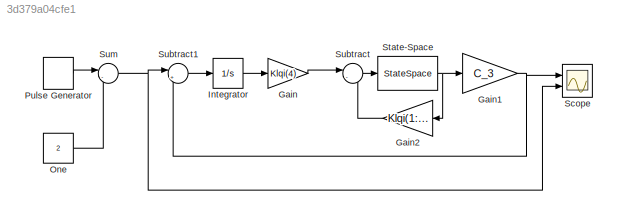
MODEL slx_3d379a04cfe1
KIND model
CONFIG AbsTol = auto
CONFIG EnableMultiTasking = off
CONFIG FixedStep = auto
CONFIG MaxStep = auto
CONFIG MinStep = auto
CONFIG RelTol = 1e-3
CONFIG SampleTimeConstraint = Unconstrained
CONFIG SolverName = VariableStepAuto
CONFIG StartTime = 0.0
CONFIG StopTime = 4
BLOCK [Gain] Gain
  Gain = Klqi(4)
BLOCK [Gain] Gain1
  Gain = C_3
  Multiplication = Matrix(K*u) (u vector)
BLOCK [Gain] Gain2
  Gain = Klqi(1:3)
  Multiplication = Matrix(K*u) (u vector)
  NameLocation = top
BLOCK [Integrator] Integrator
  Ports = [1, 1]
BLOCK [Constant] One
  OutDataTypeStr = Inherit: Inherit via back propagation
  Value = 2
BLOCK [DiscretePulseGenerator] Pulse Generator
  Ports = [0, 1]
  PulseType = Time based
  PulseWidth = 50
BLOCK [Scope] Scope
  Floating = off
  NumInputPorts = 2
  Ports = [2]
  ScopeSpecificationString = Simulink.scopes.TimeScopeBlockCfg('CurrentConfiguration', extmgr.ConfigurationSet(extmgr.Configuration('Core','General UI',true),extmgr.Configuration('Core','Source UI',true),extmgr.Configuration('Sources','WiredSimulink',true),extmgr.Configuration('Visuals','Time Domain',true,'SerializedDisplays',{struct('MinYLimReal','-0.25001','MaxYLimReal','2.2501','YLabelReal','','MinYLimMag','0.00000','MaxYL...<+1356ch>
BLOCK [StateSpace] State-Space
  A = A_3
  B = B_3
  C = C_new
  D = D_3
  InitialCondition = 0
  Ports = [1, 1]
BLOCK [Sum] Subtract
  Inputs = |--
  Ports = [2, 1]
BLOCK [Sum] Subtract1
  Inputs = |+-
  Ports = [2, 1]
BLOCK [Sum] Sum
  Inputs = |-+
  Ports = [2, 1]
NET Gain1:1 -> Scope:1, Subtract1:2
LINE Gain2:1 -> Subtract:2
LINE Gain:1 -> Subtract:1
LINE Integrator:1 -> Gain:1
LINE One:1 -> Sum:2
LINE Pulse Generator:1 -> Sum:1
NET State-Space:1 -> Gain1:1, Gain2:1
LINE Subtract1:1 -> Integrator:1
LINE Subtract:1 -> State-Space:1
NET Sum:1 -> Scope:2, Subtract1:1
note: NET lines group one-source signal fan-out (src -> all destinations, sorted); 1:1 wires keep LINE
